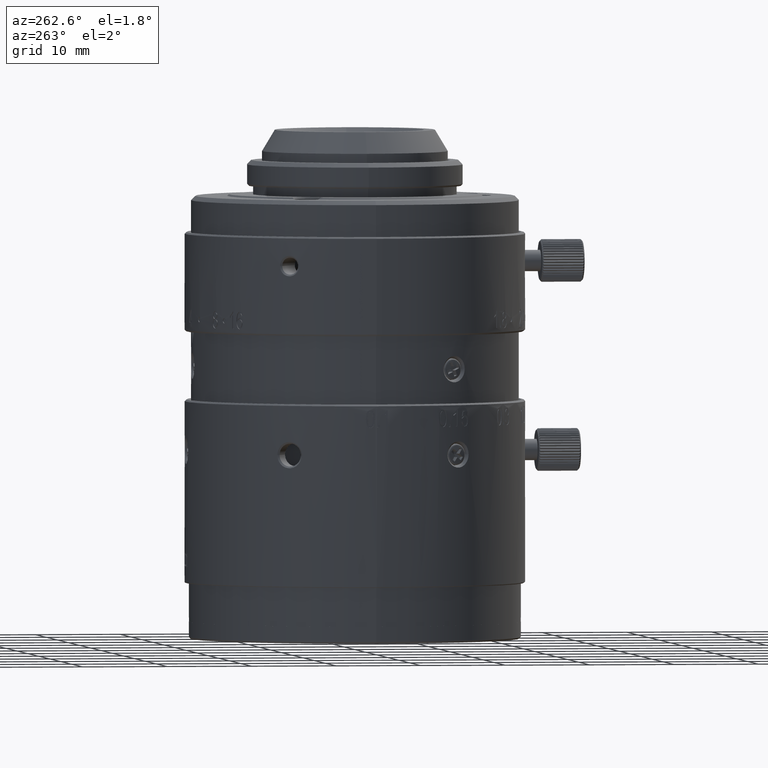
[diagram: clean part render]
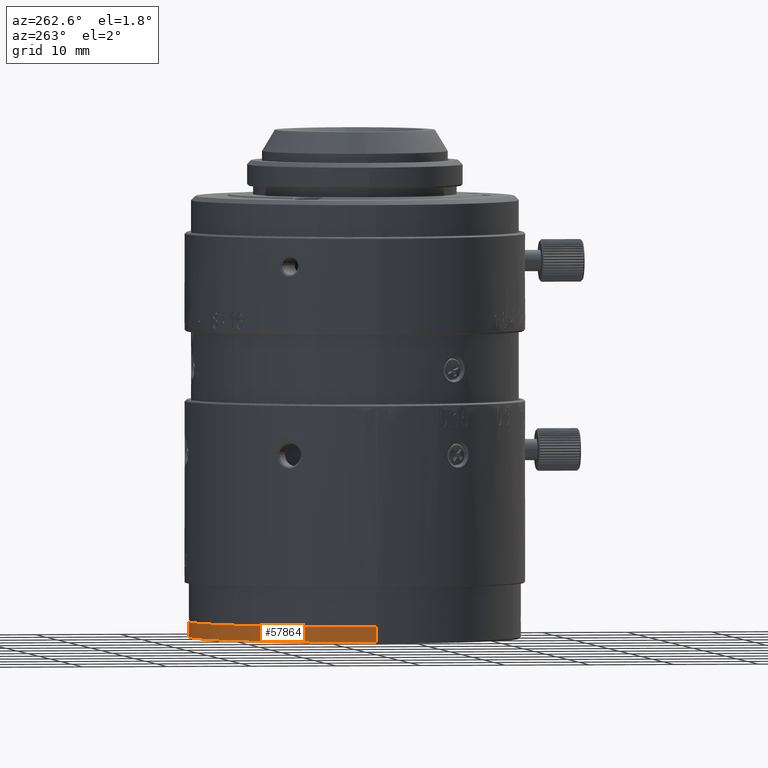
[diagram: same view with one face highlighted and labeled with its STEP entity id]
A machine part, auxiliary view. The second image highlights one B-rep face of the part: STEP entity #57864.
In plain terms, the highlighted cylindrical surface (partial cylindrical patch) has radius 19.5 mm, axis along (0, 0, -1).
Its self-contained STEP definition (entity closure, byte-faithful):
#1415 = VECTOR ( 'NONE', #15830, 1000.000000000000000 ) ;
#3106 = DIRECTION ( 'NONE',  ( 1.000000000000000000, 0.000000000000000000, 0.000000000000000000 ) ) ;
#4049 = EDGE_CURVE ( 'NONE', #11265, #78929, #19068, .T. ) ;
#4997 = AXIS2_PLACEMENT_3D ( 'NONE', #66238, #9341, #3106 ) ;
#8108 = VERTEX_POINT ( 'NONE', #61141 ) ;
#9341 = DIRECTION ( 'NONE',  ( 0.000000000000000000, 0.000000000000000000, 1.000000000000000000 ) ) ;
#9545 = EDGE_LOOP ( 'NONE', ( #59573, #45464, #25521, #32767 ) ) ;
#10165 = CARTESIAN_POINT ( 'NONE',  ( -19.50000000000000000, 0.000000000000000000, -0.8203540000000000276 ) ) ;
#10326 = CIRCLE ( 'NONE', #4997, 19.50000000000000000 ) ;
#11265 = VERTEX_POINT ( 'NONE', #29666 ) ;
#12278 = AXIS2_PLACEMENT_3D ( 'NONE', #14320, #72024, #28397 ) ;
#14320 = CARTESIAN_POINT ( 'NONE',  ( 0.000000000000000000, 0.000000000000000000, 0.1796460000000000001 ) ) ;
#15830 = DIRECTION ( 'NONE',  ( 0.000000000000000000, 0.000000000000000000, -1.000000000000000000 ) ) ;
#15997 = DIRECTION ( 'NONE',  ( 0.000000000000000000, 0.000000000000000000, -1.000000000000000000 ) ) ;
#19068 = LINE ( 'NONE', #39816, #48457 ) ;
#20132 = EDGE_CURVE ( 'NONE', #11265, #62417, #10326, .T. ) ;
#22465 = CARTESIAN_POINT ( 'NONE',  ( -19.50000000000000000, 0.000000000000000000, -0.8203540000000000276 ) ) ;
#25521 = ORIENTED_EDGE ( 'NONE', *, *, #80060, .F. ) ;
#28397 = DIRECTION ( 'NONE',  ( -1.000000000000000000, 0.000000000000000000, 0.000000000000000000 ) ) ;
#29290 = CARTESIAN_POINT ( 'NONE',  ( 0.000000000000000000, 0.000000000000000000, -2.620354000000000294 ) ) ;
#29666 = CARTESIAN_POINT ( 'NONE',  ( 19.50000000000000000, 0.000000000000000000, -0.8203540000000000276 ) ) ;
#30348 = LINE ( 'NONE', #22465, #1415 ) ;
#32767 = ORIENTED_EDGE ( 'NONE', *, *, #20132, .F. ) ;
#35342 = AXIS2_PLACEMENT_3D ( 'NONE', #29290, #15997, #42162 ) ;
#38919 = CARTESIAN_POINT ( 'NONE',  ( 19.50000000000000000, 0.000000000000000000, -2.620354000000000294 ) ) ;
#39816 = CARTESIAN_POINT ( 'NONE',  ( 19.50000000000000000, 0.000000000000000000, -0.8203540000000000276 ) ) ;
#39937 = FACE_OUTER_BOUND ( 'NONE', #9545, .T. ) ;
#42162 = DIRECTION ( 'NONE',  ( -1.000000000000000000, 0.000000000000000000, 0.000000000000000000 ) ) ;
#45464 = ORIENTED_EDGE ( 'NONE', *, *, #45475, .F. ) ;
#45475 = EDGE_CURVE ( 'NONE', #8108, #78929, #47262, .T. ) ;
#47262 = CIRCLE ( 'NONE', #35342, 19.50000000000000000 ) ;
#48457 = VECTOR ( 'NONE', #58105, 1000.000000000000000 ) ;
#57864 = ADVANCED_FACE ( 'NONE', ( #39937 ), #65287, .T. ) ;
#58105 = DIRECTION ( 'NONE',  ( 0.000000000000000000, 0.000000000000000000, -1.000000000000000000 ) ) ;
#59573 = ORIENTED_EDGE ( 'NONE', *, *, #4049, .T. ) ;
#61141 = CARTESIAN_POINT ( 'NONE',  ( -19.50000000000000000, 0.000000000000000000, -2.620354000000000294 ) ) ;
#62417 = VERTEX_POINT ( 'NONE', #10165 ) ;
#65287 = CYLINDRICAL_SURFACE ( 'NONE', #12278, 19.50000000000000000 ) ;
#66238 = CARTESIAN_POINT ( 'NONE',  ( 0.000000000000000000, 0.000000000000000000, -0.8203540000000000276 ) ) ;
#72024 = DIRECTION ( 'NONE',  ( 0.000000000000000000, 0.000000000000000000, -1.000000000000000000 ) ) ;
#78929 = VERTEX_POINT ( 'NONE', #38919 ) ;
#80060 = EDGE_CURVE ( 'NONE', #62417, #8108, #30348, .T. ) ;